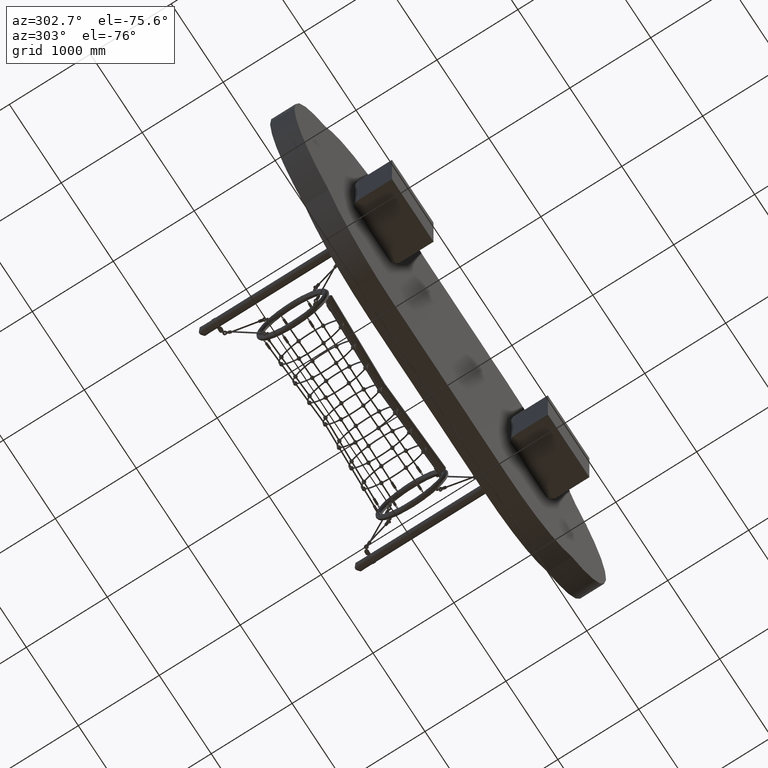
[diagram: clean part render]
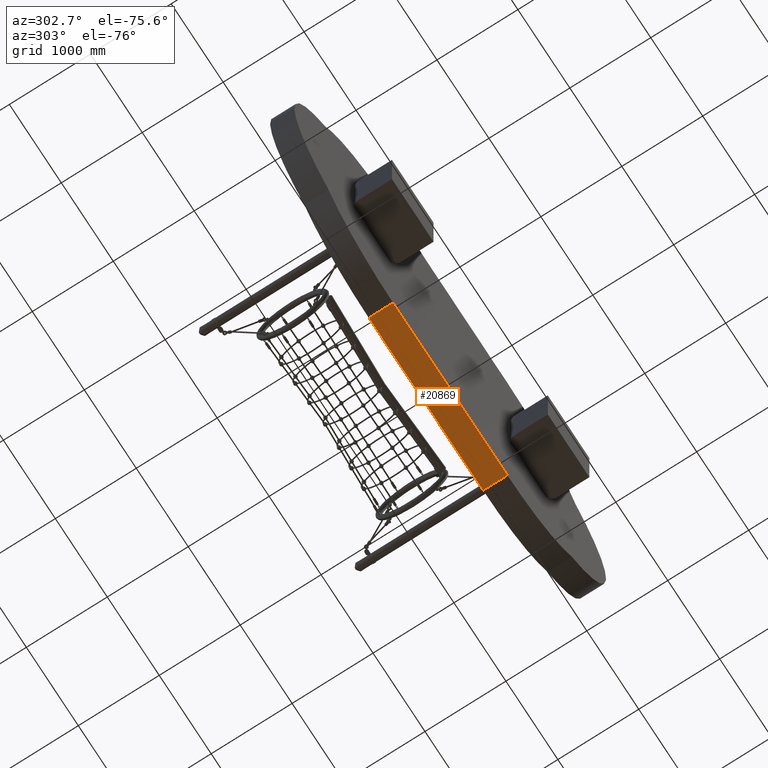
[diagram: same view with one face highlighted and labeled with its STEP entity id]
A machine part, auxiliary view. The second image highlights one B-rep face of the part: STEP entity #20869.
In plain terms, the highlighted planar face has unit normal (-0.0001, 0, 1).
Its self-contained STEP definition (entity closure, byte-faithful):
#277 = CARTESIAN_POINT ( 'NONE',  ( 0.4000000000000000200, 0.2999999999999999900, -1.899999999999999900 ) ) ;
#711 = CARTESIAN_POINT ( 'NONE',  ( 2.600000000000000100, 0.2999999999999999900, -1.900000000000000100 ) ) ;
#944 = DIRECTION ( 'NONE',  ( -0.0000000000000000000, -1.000000000000000000, -0.0000000000000000000 ) ) ;
#990 = DIRECTION ( 'NONE',  ( 0.0000000000000000000, 1.000000000000000000, 0.0000000000000000000 ) ) ;
#2159 = CARTESIAN_POINT ( 'NONE',  ( 0.4000000000000000200, 0.2999999999999999900, -1.899999999999999900 ) ) ;
#2294 = ORIENTED_EDGE ( 'NONE', *, *, #5874, .F. ) ;
#5874 = EDGE_CURVE ( 'NONE', #11155, #13337, #25666, .T. ) ;
#6572 = LINE ( 'NONE', #2159, #26217 ) ;
#6716 = CARTESIAN_POINT ( 'NONE',  ( 2.600000000000000100, 0.0000000000000000000, -1.899999999999999900 ) ) ;
#7459 = FACE_OUTER_BOUND ( 'NONE', #8270, .T. ) ;
#7705 = EDGE_CURVE ( 'NONE', #14364, #11155, #6572, .T. ) ;
#7713 = EDGE_CURVE ( 'NONE', #13337, #22818, #20145, .T. ) ;
#8270 = EDGE_LOOP ( 'NONE', ( #24545, #21705, #15438, #2294 ) ) ;
#8374 = VECTOR ( 'NONE', #21880, 1.000000000000000000 ) ;
#9664 = AXIS2_PLACEMENT_3D ( 'NONE', #31294, #15818, #33859 ) ;
#11155 = VERTEX_POINT ( 'NONE', #11526 ) ;
#11526 = CARTESIAN_POINT ( 'NONE',  ( 0.4000000000000000200, 0.0000000000000000000, -1.899999999999999900 ) ) ;
#11705 = EDGE_CURVE ( 'NONE', #22818, #14364, #22707, .T. ) ;
#12171 = VECTOR ( 'NONE', #990, 1.000000000000000000 ) ;
#13337 = VERTEX_POINT ( 'NONE', #6716 ) ;
#14364 = VERTEX_POINT ( 'NONE', #277 ) ;
#15438 = ORIENTED_EDGE ( 'NONE', *, *, #7713, .F. ) ;
#15818 = DIRECTION ( 'NONE',  ( 0.0000000000000000000, -0.0000000000000000000, 1.000000000000000000 ) ) ;
#20145 = LINE ( 'NONE', #711, #12171 ) ;
#20869 = ADVANCED_FACE ( 'NONE', ( #7459 ), #25874, .F. ) ;
#21705 = ORIENTED_EDGE ( 'NONE', *, *, #11705, .F. ) ;
#21880 = DIRECTION ( 'NONE',  ( -1.000000000000000000, -0.0000000000000000000, 0.0000000000000000000 ) ) ;
#22707 = LINE ( 'NONE', #29327, #8374 ) ;
#22818 = VERTEX_POINT ( 'NONE', #24292 ) ;
#24292 = CARTESIAN_POINT ( 'NONE',  ( 2.600000000000000100, 0.2999999999999999900, -1.899999999999999900 ) ) ;
#24545 = ORIENTED_EDGE ( 'NONE', *, *, #7705, .F. ) ;
#25666 = LINE ( 'NONE', #33083, #31611 ) ;
#25874 = PLANE ( 'NONE',  #9664 ) ;
#26217 = VECTOR ( 'NONE', #944, 1.000000000000000000 ) ;
#29327 = CARTESIAN_POINT ( 'NONE',  ( 3.000000000000000000, 0.2999999999999999900, -1.900000000000000100 ) ) ;
#31294 = CARTESIAN_POINT ( 'NONE',  ( 2.600000000000000100, 0.2999999999999999900, -1.900000000000000100 ) ) ;
#31611 = VECTOR ( 'NONE', #32869, 1.000000000000000000 ) ;
#32869 = DIRECTION ( 'NONE',  ( 1.000000000000000000, 0.0000000000000000000, -0.0000000000000000000 ) ) ;
#33083 = CARTESIAN_POINT ( 'NONE',  ( 2.600000000000000100, 0.0000000000000000000, -1.900000000000000100 ) ) ;
#33859 = DIRECTION ( 'NONE',  ( 1.000000000000000000, 0.0000000000000000000, -0.0000000000000000000 ) ) ;